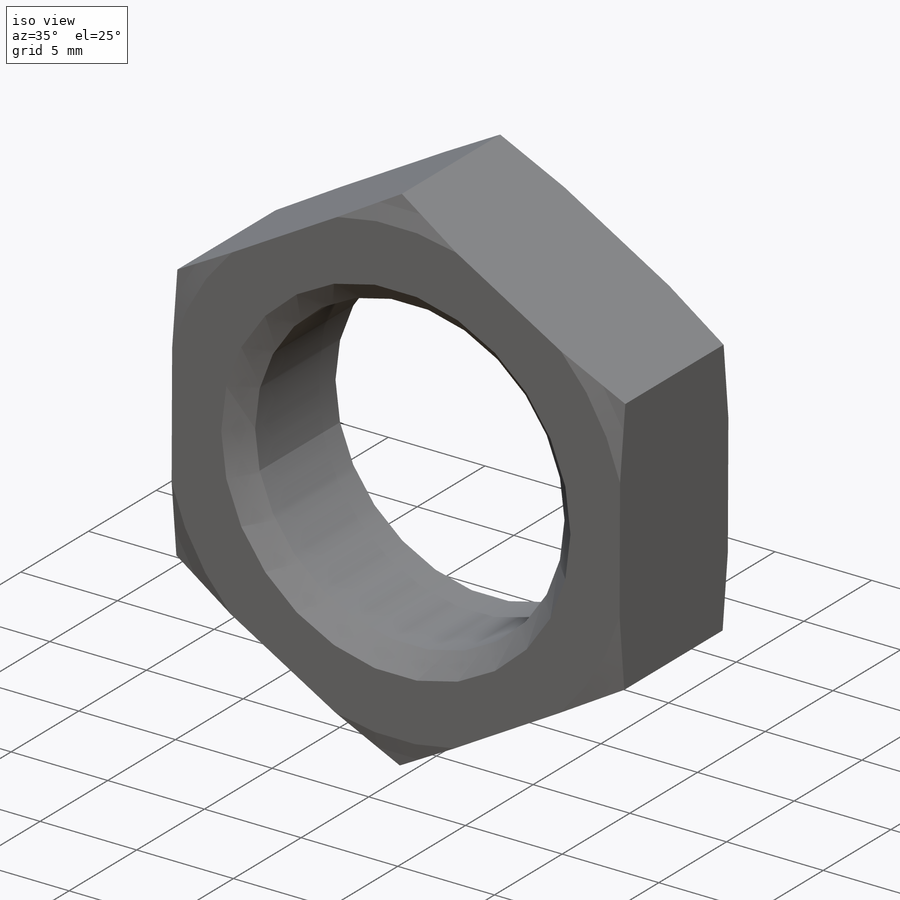
[diagram: iso view]
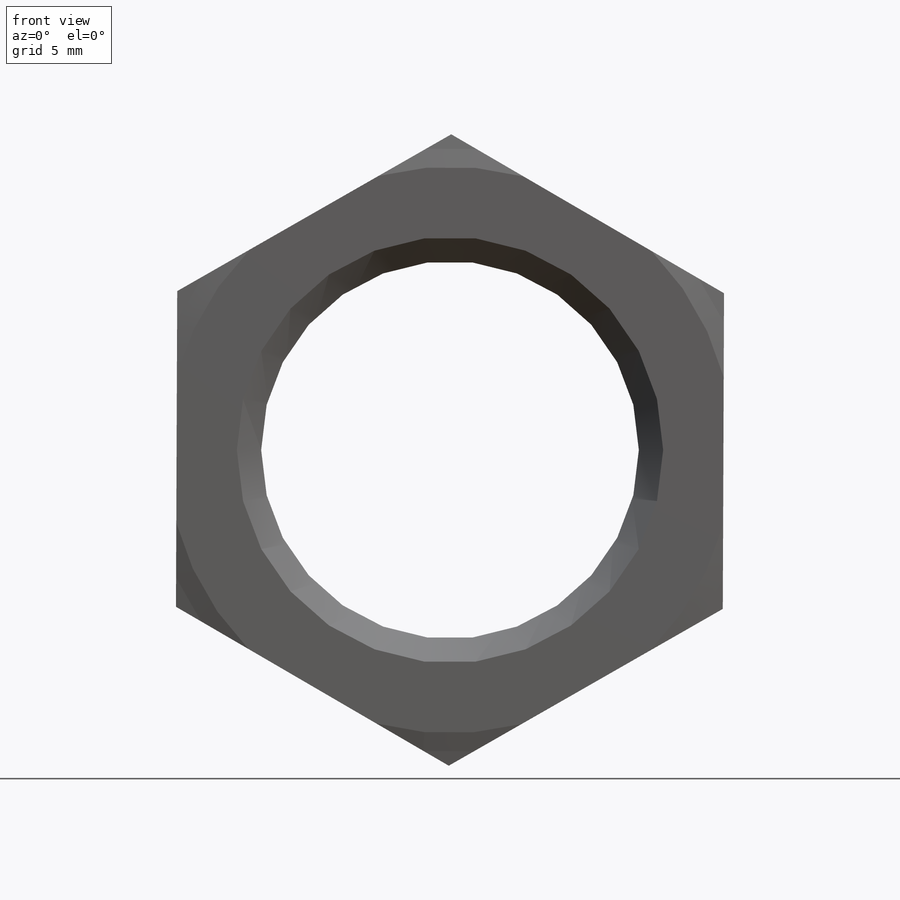
[diagram: front view]
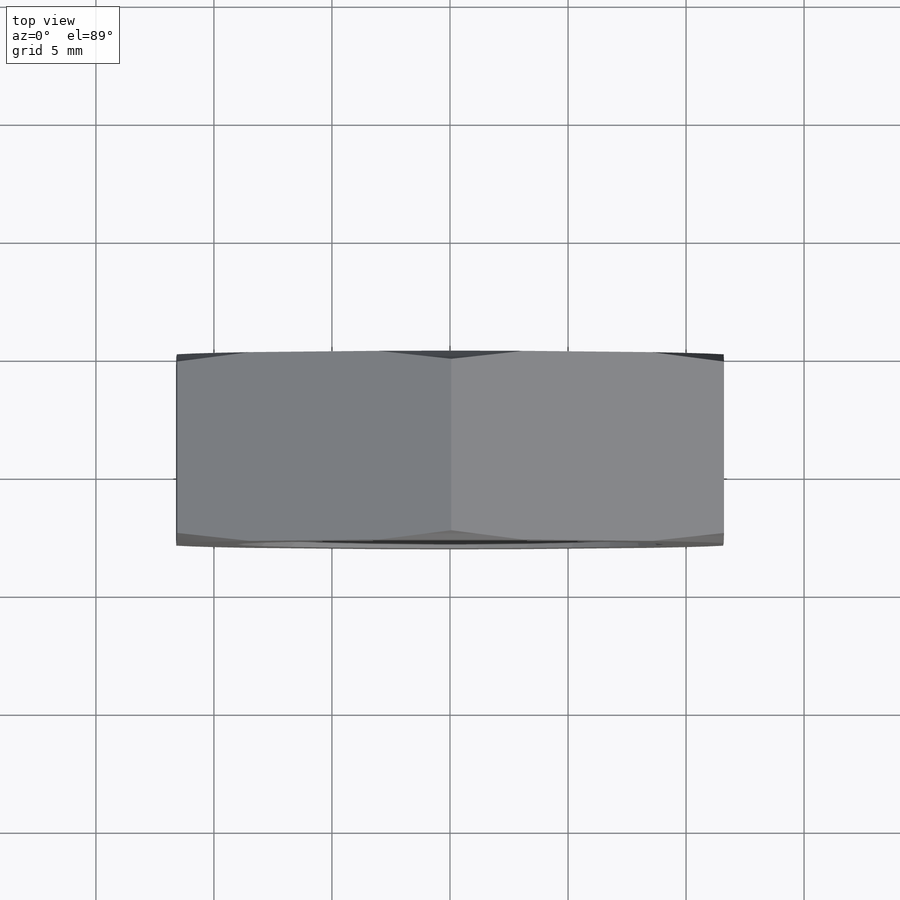
[diagram: top view]
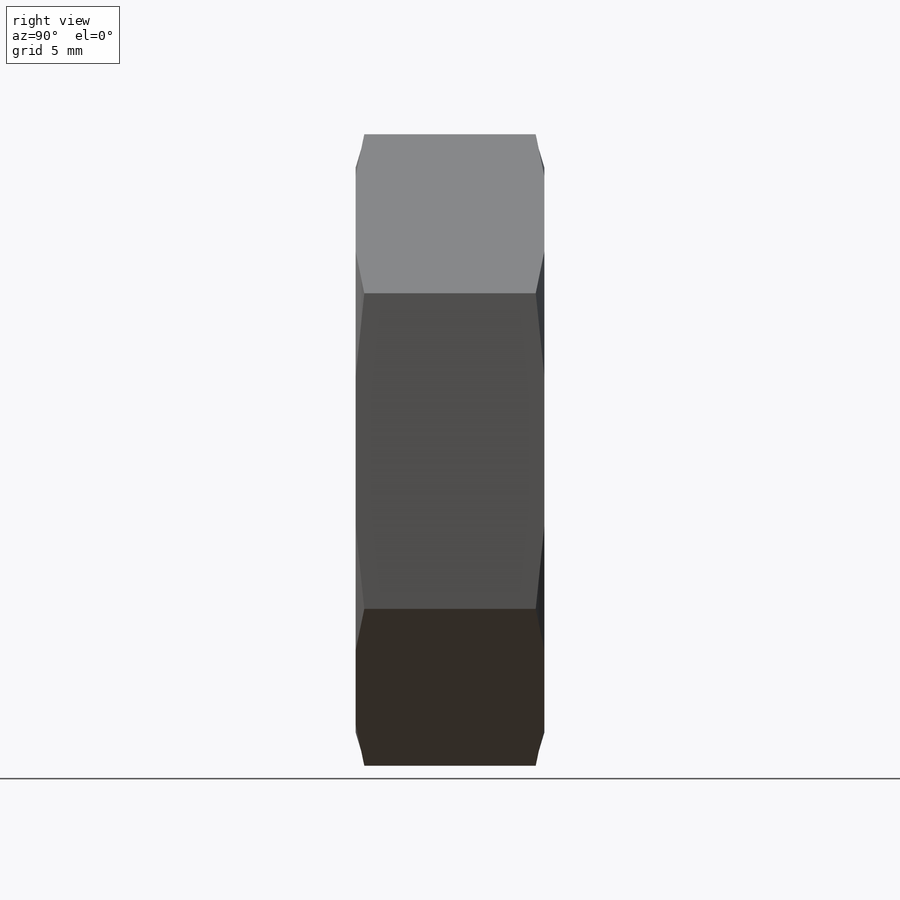
[diagram: right view]
SOLIDWORKS PART (.sldprt)
format: sldprt  version: not decoded by parser v0  size: 212,480 bytes
history: native  units: mm
features: sketch x4, plane x3, cut_extrude x2, material x1, extrude x1, thread x1, chamfer x1 (+10 scaffold rows collapsed)
feature tree (23):
  scaffold x10  (default folders/planes/origin — collapsed)
  material  "材质 <未指定>"
  plane  "基准面1"
  plane  "基准面2"
  plane  "基准面3"
  sketch  "尺寸草图"  dims[D=16.0mm P=2.5mm e=26.75mm m=8.0mm mw=7.3mm s=24.0mm da=17.3mm dw=22.5mm D1=~15.238095mm]
  sketch  "草图1"  dims[D=16.0mm e=26.75mm D1=~15.233387mm]
  extrude  "基体-拉伸"  [1 undecoded]
  thread  "装饰螺纹线1"  [2 undecoded]
  chamfer  "倒角1"  Distance=1.030952mm Angle=45deg m=8mm
  sketch  "草图2"  dims[s=24.0mm D2=15.57mm]
  cut_extrude  "切除-拉伸1"  [1 undecoded]
  sketch  "草图3"  dims[D1=24.0mm]
  cut_extrude  "切除-拉伸2"  [1 undecoded]
decode coverage: 5 of 9 modeling features carry decoded parameters
note: ~ marks probable driven/reference dimensions
note: 5 parameter values undecoded
summary: no parameter record found for 4 features
note: suppression state not decoded; provenance and decode notes live in map.json
